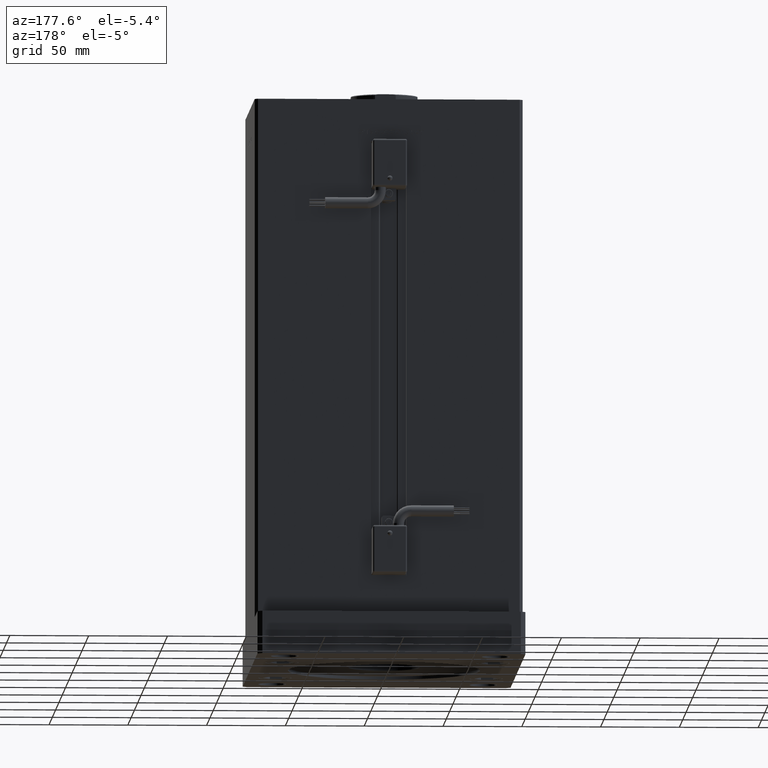
[diagram: clean part render]
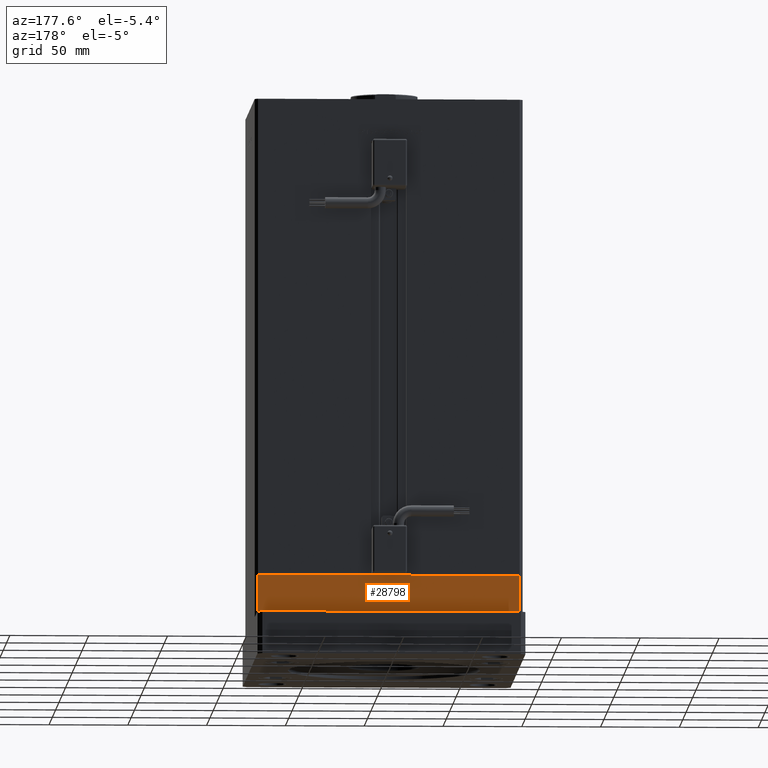
[diagram: same view with one face highlighted and labeled with its STEP entity id]
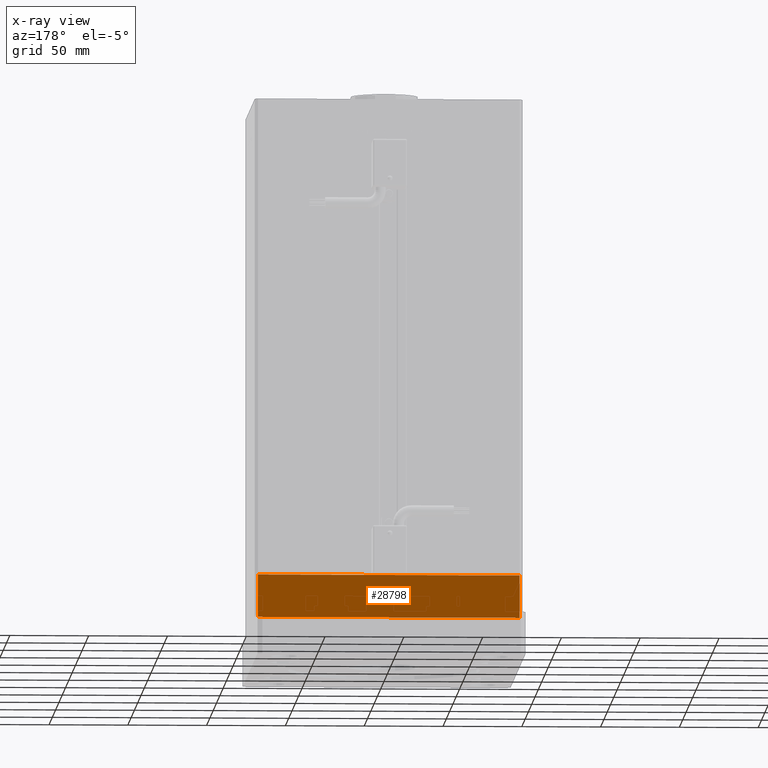
[diagram: x-ray of the same camera — body ghosted, the highlighted face saturated]
A machine part, auxiliary view. The second image highlights one B-rep face of the part: STEP entity #28798.
The next image is the same camera in x-ray: the body ghosted, the highlighted face saturated — about 0% of this face is hidden behind the body in this view.
In plain terms, the highlighted planar face has unit normal (0, 1, 0).
Its self-contained STEP definition (entity closure, byte-faithful):
#453 = LINE ( 'NONE', #18120, #21511 ) ;
#743 = EDGE_CURVE ( 'NONE', #27418, #15173, #53784, .T. ) ;
#1611 = CARTESIAN_POINT ( 'NONE',  ( 82.99999999999992895, 72.50000000000002842, -27.00000000000000000 ) ) ;
#2599 = ORIENTED_EDGE ( 'NONE', *, *, #41436, .F. ) ;
#6056 = VECTOR ( 'NONE', #46294, 1000.000000000000000 ) ;
#7763 = CARTESIAN_POINT ( 'NONE',  ( -83.00000000000001421, 72.49999999999998579, -27.00000000000000000 ) ) ;
#8990 = CARTESIAN_POINT ( 'NONE',  ( 82.99999999999992895, 72.50000000000002842, -27.00000000000000000 ) ) ;
#10729 = CARTESIAN_POINT ( 'NONE',  ( 82.99999999999992895, 72.50000000000002842, 0.000000000000000000 ) ) ;
#12982 = FACE_OUTER_BOUND ( 'NONE', #55595, .T. ) ;
#13265 = PLANE ( 'NONE',  #55242 ) ;
#14161 = VERTEX_POINT ( 'NONE', #18156 ) ;
#14718 = DIRECTION ( 'NONE',  ( 0.000000000000000000, 0.000000000000000000, 1.000000000000000000 ) ) ;
#15173 = VERTEX_POINT ( 'NONE', #30541 ) ;
#17119 = VECTOR ( 'NONE', #14718, 1000.000000000000000 ) ;
#18120 = CARTESIAN_POINT ( 'NONE',  ( 82.99999999999992895, 72.50000000000002842, -27.00000000000000000 ) ) ;
#18156 = CARTESIAN_POINT ( 'NONE',  ( -83.00000000000001421, 72.49999999999998579, 0.000000000000000000 ) ) ;
#19085 = VECTOR ( 'NONE', #41242, 1000.000000000000000 ) ;
#21511 = VECTOR ( 'NONE', #35514, 1000.000000000000000 ) ;
#21832 = DIRECTION ( 'NONE',  ( -2.508033941171287983E-16, 1.000000000000000000, 0.000000000000000000 ) ) ;
#24504 = EDGE_CURVE ( 'NONE', #27418, #49772, #453, .T. ) ;
#26360 = EDGE_CURVE ( 'NONE', #49772, #14161, #54833, .T. ) ;
#27418 = VERTEX_POINT ( 'NONE', #42232 ) ;
#28798 = ADVANCED_FACE ( 'NONE', ( #12982 ), #13265, .T. ) ;
#30541 = CARTESIAN_POINT ( 'NONE',  ( 82.99999999999992895, 72.50000000000002842, 0.000000000000000000 ) ) ;
#32944 = ORIENTED_EDGE ( 'NONE', *, *, #24504, .T. ) ;
#33845 = ORIENTED_EDGE ( 'NONE', *, *, #26360, .T. ) ;
#35514 = DIRECTION ( 'NONE',  ( -1.000000000000000000, -2.508033941171287983E-16, 0.000000000000000000 ) ) ;
#39219 = DIRECTION ( 'NONE',  ( -1.000000000000000000, -2.508033941171287983E-16, 0.000000000000000000 ) ) ;
#41242 = DIRECTION ( 'NONE',  ( -1.000000000000000000, -2.508033941171287983E-16, 0.000000000000000000 ) ) ;
#41436 = EDGE_CURVE ( 'NONE', #15173, #14161, #53783, .T. ) ;
#42232 = CARTESIAN_POINT ( 'NONE',  ( 82.99999999999992895, 72.50000000000002842, -27.00000000000000000 ) ) ;
#46294 = DIRECTION ( 'NONE',  ( 0.000000000000000000, 0.000000000000000000, 1.000000000000000000 ) ) ;
#49772 = VERTEX_POINT ( 'NONE', #53314 ) ;
#52118 = ORIENTED_EDGE ( 'NONE', *, *, #743, .F. ) ;
#53314 = CARTESIAN_POINT ( 'NONE',  ( -83.00000000000001421, 72.49999999999998579, -27.00000000000000000 ) ) ;
#53783 = LINE ( 'NONE', #10729, #19085 ) ;
#53784 = LINE ( 'NONE', #1611, #17119 ) ;
#54833 = LINE ( 'NONE', #7763, #6056 ) ;
#55242 = AXIS2_PLACEMENT_3D ( 'NONE', #8990, #21832, #39219 ) ;
#55595 = EDGE_LOOP ( 'NONE', ( #2599, #52118, #32944, #33845 ) ) ;